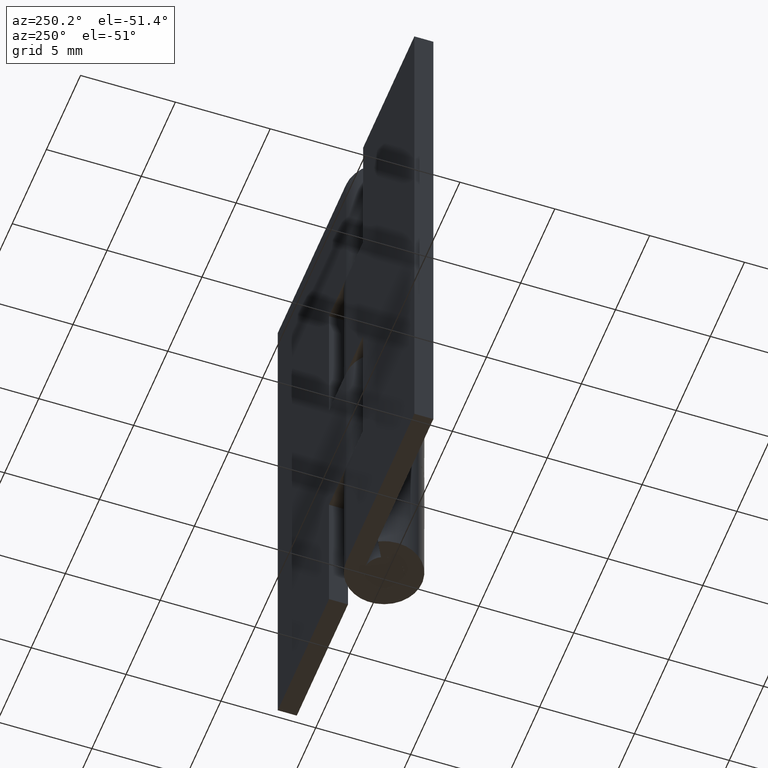
[diagram: clean part render]
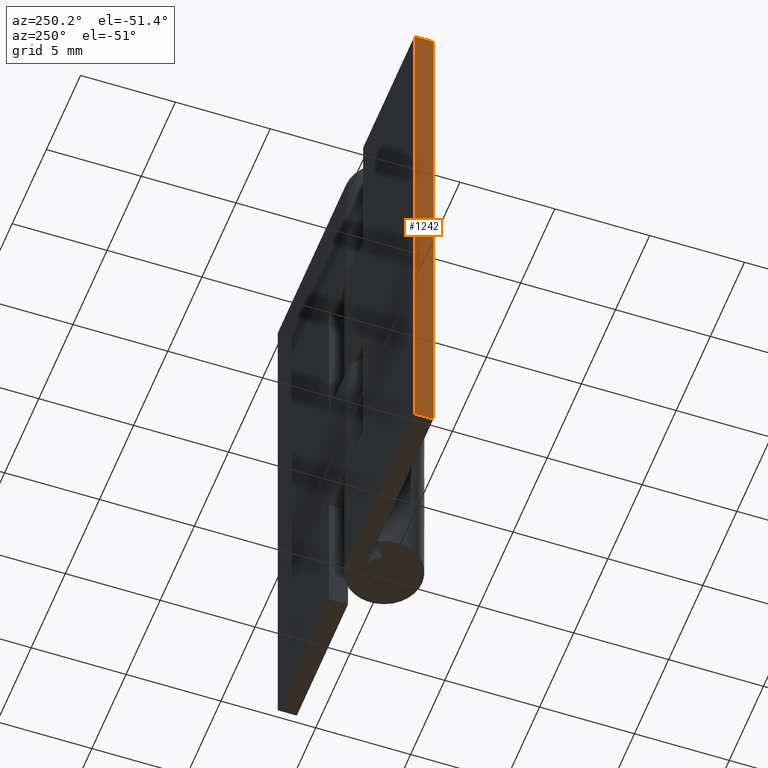
[diagram: same view with one face highlighted and labeled with its STEP entity id]
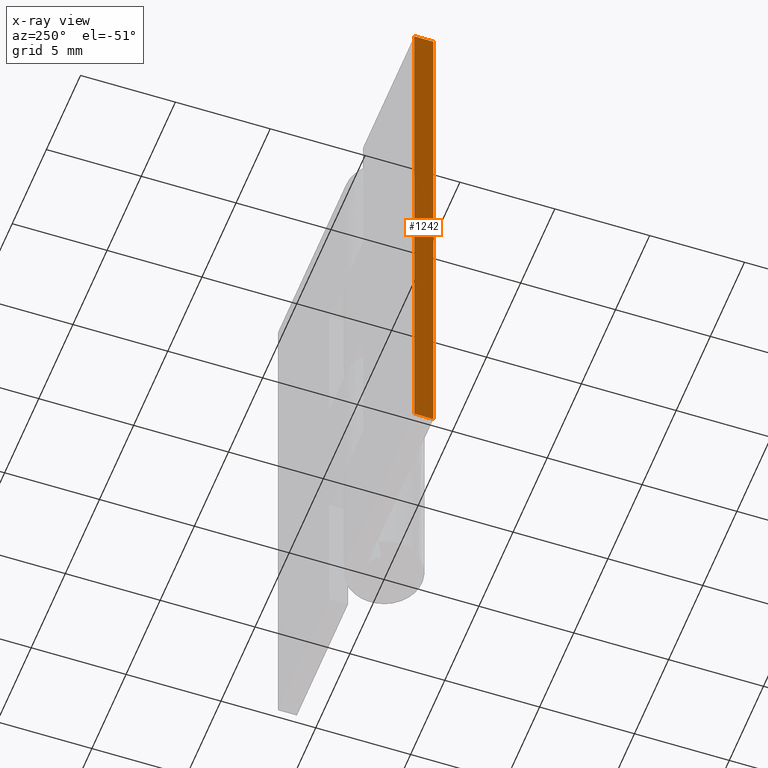
[diagram: x-ray of the same camera — body ghosted, the highlighted face saturated]
A machine part, auxiliary view. The second image highlights one B-rep face of the part: STEP entity #1242.
The next image is the same camera in x-ray: the body ghosted, the highlighted face saturated — about 0% of this face is hidden behind the body in this view.
In plain terms, the highlighted face is a freeform B-spline surface patch.
Its self-contained STEP definition (entity closure, byte-faithful):
#988=CARTESIAN_POINT('',(-10.0,1.0,0.0));
#989=VERTEX_POINT('',#988);
#990=CARTESIAN_POINT('',(-10.0,2.0,0.0));
#991=VERTEX_POINT('',#990);
#992=CARTESIAN_POINT('',(-10.0,1.0,0.0));
#993=CARTESIAN_POINT('',(-10.0,2.0,0.0));
#994=QUASI_UNIFORM_CURVE('',1,(#992,#993),.UNSPECIFIED.,.F.,.U.);
#995=EDGE_CURVE('',#989,#991,#994,.T.);
#1066=CARTESIAN_POINT('',(-10.0,1.0,30.0));
#1067=VERTEX_POINT('',#1066);
#1074=CARTESIAN_POINT('',(-10.0,2.0,30.0));
#1075=VERTEX_POINT('',#1074);
#1081=CARTESIAN_POINT('',(-10.0,1.0,30.0));
#1082=CARTESIAN_POINT('',(-10.0,2.0,30.0));
#1083=QUASI_UNIFORM_CURVE('',1,(#1081,#1082),.UNSPECIFIED.,.F.,.U.);
#1084=EDGE_CURVE('',#1067,#1075,#1083,.T.);
#1097=CARTESIAN_POINT('',(-10.0,1.0,30.0));
#1098=CARTESIAN_POINT('',(-10.0,1.0,0.0));
#1099=QUASI_UNIFORM_CURVE('',1,(#1097,#1098),.UNSPECIFIED.,.F.,.U.);
#1100=EDGE_CURVE('',#1067,#989,#1099,.T.);
#1221=CARTESIAN_POINT('',(-10.0,2.0,30.0));
#1222=CARTESIAN_POINT('',(-10.0,2.0,0.0));
#1223=QUASI_UNIFORM_CURVE('',1,(#1221,#1222),.UNSPECIFIED.,.F.,.U.);
#1224=EDGE_CURVE('',#1075,#991,#1223,.T.);
#1231=CARTESIAN_POINT('',(-10.0,0.950050001938194,-1.498499941854179));
#1232=CARTESIAN_POINT('',(-10.0,0.950050001938194,31.498500746516889));
#1233=CARTESIAN_POINT('',(-10.0,2.049950024883896,-1.498499941854179));
#1234=CARTESIAN_POINT('',(-10.0,2.049950024883896,31.498500746516889));
#1235=B_SPLINE_SURFACE_WITH_KNOTS('',1,1,((#1231,#1233),(#1232,#1234)),.UNSPECIFIED.,.F.,.F.,.U.,(2,2),(2,2),(0.0,32.997000688371067),(0.041708334948495,0.958291687403247),.UNSPECIFIED.);
#1236=ORIENTED_EDGE('',*,*,#995,.F.);
#1237=ORIENTED_EDGE('',*,*,#1100,.F.);
#1238=ORIENTED_EDGE('',*,*,#1084,.T.);
#1239=ORIENTED_EDGE('',*,*,#1224,.T.);
#1240=EDGE_LOOP('',(#1236,#1237,#1238,#1239));
#1241=FACE_OUTER_BOUND('',#1240,.T.);
#1242=ADVANCED_FACE('',(#1241),#1235,.T.);